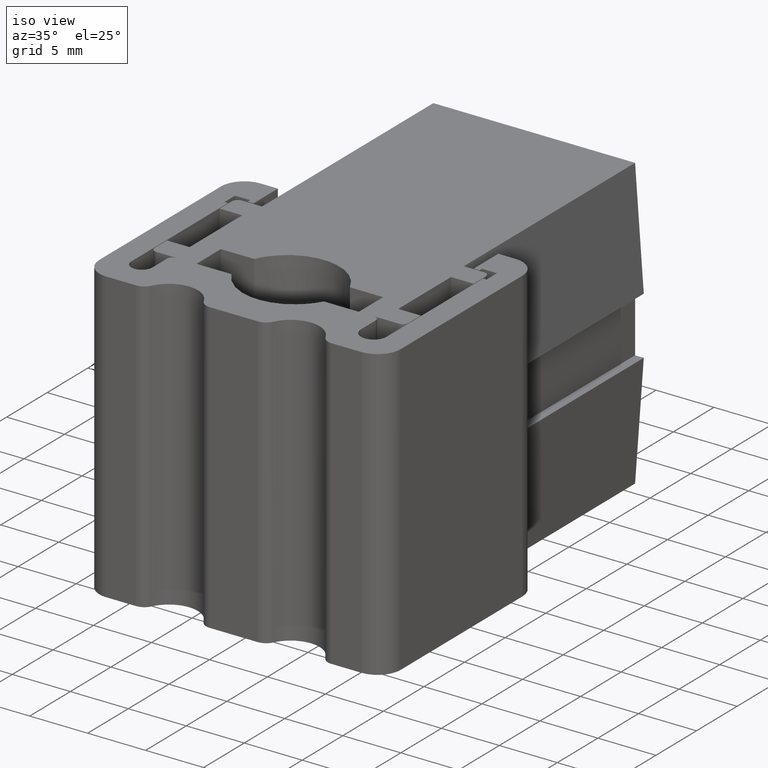
[diagram: clean part render]
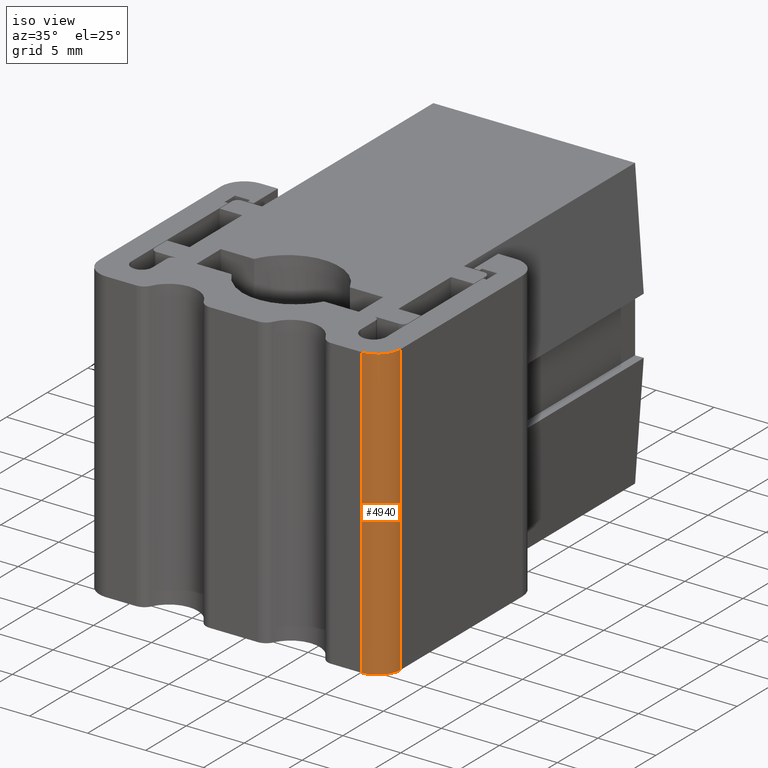
[diagram: same view with one face highlighted and labeled with its STEP entity id]
A machine part, iso view. The second image highlights one B-rep face of the part: STEP entity #4940.
In plain terms, the highlighted face is a freeform B-spline surface patch.
Its self-contained STEP definition (entity closure, byte-faithful):
#3430=CARTESIAN_POINT('',(13.000000617466901,-5.100000242237000,-12.500001187436879));
#3431=VERTEX_POINT('',#3430);
#3437=CARTESIAN_POINT('',(11.000000522472000,-7.100000337231889,-12.500001187436879));
#3438=VERTEX_POINT('',#3437);
#3439=CARTESIAN_POINT('',(11.000000522472000,-7.100000337231890,-12.500001187436879));
#3440=CARTESIAN_POINT('',(13.000000617466892,-7.100000337231890,-12.500001187436879));
#3441=CARTESIAN_POINT('',(13.000000617466890,-5.100000242237000,-12.500001187436879));
#3449=(BOUNDED_CURVE()B_SPLINE_CURVE(2,(#3439,#3440,#3441),.UNSPECIFIED.,.F.,.U.)CURVE()GEOMETRIC_REPRESENTATION_ITEM()QUASI_UNIFORM_CURVE()RATIONAL_B_SPLINE_CURVE((1.0,0.707106781186548,1.0))REPRESENTATION_ITEM(''));
#3450=EDGE_CURVE('',#3438,#3431,#3449,.T.);
#4164=CARTESIAN_POINT('',(11.000000522472000,-7.100000337231889,12.500000000000000));
#4165=VERTEX_POINT('',#4164);
#4171=CARTESIAN_POINT('',(13.000000617466901,-5.100000242237000,12.500000000000000));
#4172=VERTEX_POINT('',#4171);
#4173=CARTESIAN_POINT('',(11.000000522472000,-7.100000337231890,12.500000000000000));
#4174=CARTESIAN_POINT('',(13.000000617466892,-7.100000337231890,12.500000000000000));
#4175=CARTESIAN_POINT('',(13.000000617466890,-5.100000242237000,12.500000000000000));
#4183=(BOUNDED_CURVE()B_SPLINE_CURVE(2,(#4173,#4174,#4175),.UNSPECIFIED.,.F.,.U.)CURVE()GEOMETRIC_REPRESENTATION_ITEM()QUASI_UNIFORM_CURVE()RATIONAL_B_SPLINE_CURVE((1.0,0.707106781186548,1.0))REPRESENTATION_ITEM(''));
#4184=EDGE_CURVE('',#4165,#4172,#4183,.T.);
#4906=CARTESIAN_POINT('',(11.000000522472000,-7.100000337231889,12.500000000000000));
#4907=CARTESIAN_POINT('',(11.000000522472000,-7.100000337231889,-12.500001187436879));
#4908=QUASI_UNIFORM_CURVE('',1,(#4906,#4907),.UNSPECIFIED.,.F.,.U.);
#4909=EDGE_CURVE('',#4165,#3438,#4908,.T.);
#4916=CARTESIAN_POINT('',(10.947646623369581,-7.099314987150452,13.125000029685930));
#4917=CARTESIAN_POINT('',(10.947646623369581,-7.099314987150452,-13.140626217864950));
#4918=CARTESIAN_POINT('',(13.149970202054570,-7.156984859651869,13.125000029685927));
#4919=CARTESIAN_POINT('',(13.149970202054570,-7.156984859651869,-13.140626217864950));
#4920=CARTESIAN_POINT('',(12.995049577496278,-4.959360105624771,13.125000029685923));
#4921=CARTESIAN_POINT('',(12.995049577496278,-4.959360105624771,-13.140626217864952));
#4929=(BOUNDED_SURFACE()B_SPLINE_SURFACE(1,2,((#4916,#4918,#4920),(#4917,#4919,#4921)),.UNSPECIFIED.,.F.,.F.,.U.)B_SPLINE_SURFACE_WITH_KNOTS((2,2),(3,3),(0.0,26.265626247550880),(0.0,3.542284830854211),.UNSPECIFIED.)GEOMETRIC_REPRESENTATION_ITEM()RATIONAL_B_SPLINE_SURFACE(((1.0,0.670944225525121,0.996392643920372),(1.0,0.670944225525121,0.996392643920372)))REPRESENTATION_ITEM('')SURFACE());
#4930=ORIENTED_EDGE('',*,*,#3450,.T.);
#4931=CARTESIAN_POINT('',(13.000000617466901,-5.100000242237000,12.500000000000000));
#4932=CARTESIAN_POINT('',(13.000000617466901,-5.100000242237000,-12.500001187436879));
#4933=QUASI_UNIFORM_CURVE('',1,(#4931,#4932),.UNSPECIFIED.,.F.,.U.);
#4934=EDGE_CURVE('',#4172,#3431,#4933,.T.);
#4935=ORIENTED_EDGE('',*,*,#4934,.F.);
#4936=ORIENTED_EDGE('',*,*,#4184,.F.);
#4937=ORIENTED_EDGE('',*,*,#4909,.T.);
#4938=EDGE_LOOP('',(#4930,#4935,#4936,#4937));
#4939=FACE_OUTER_BOUND('',#4938,.T.);
#4940=ADVANCED_FACE('',(#4939),#4929,.T.);